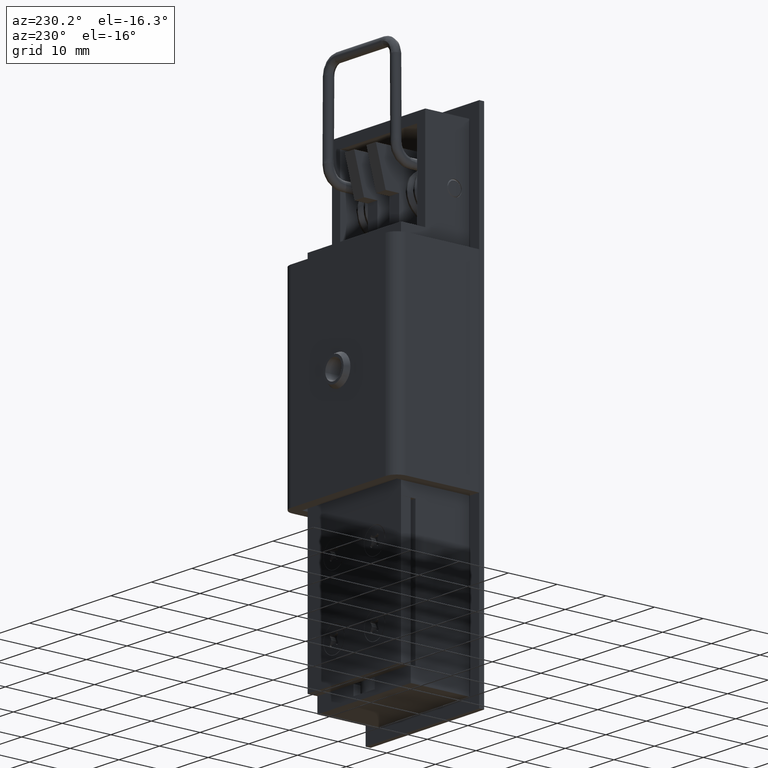
[diagram: clean part render]
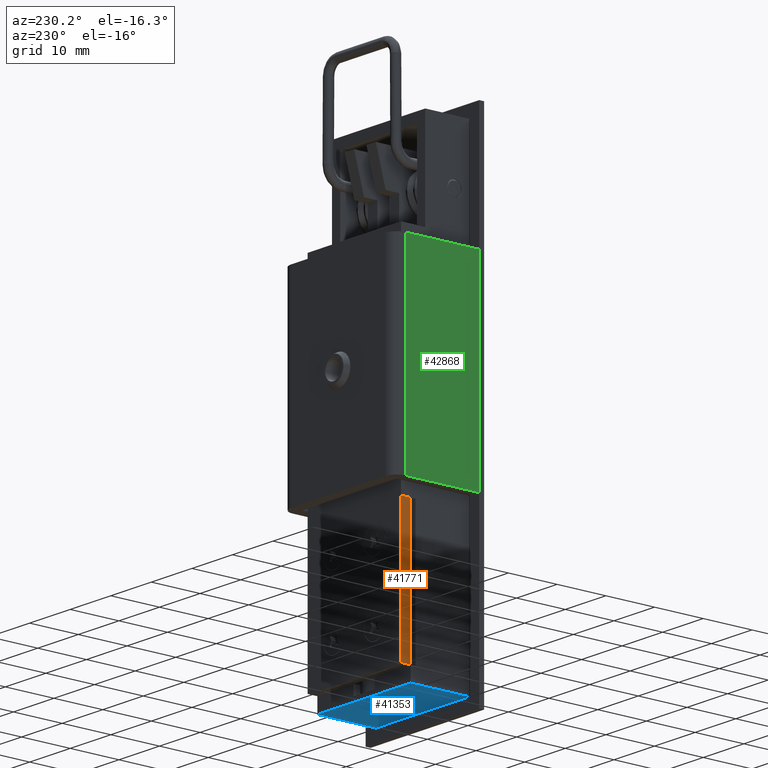
[diagram: same view with three faces highlighted in distinct colors, each labeled with its STEP entity id]
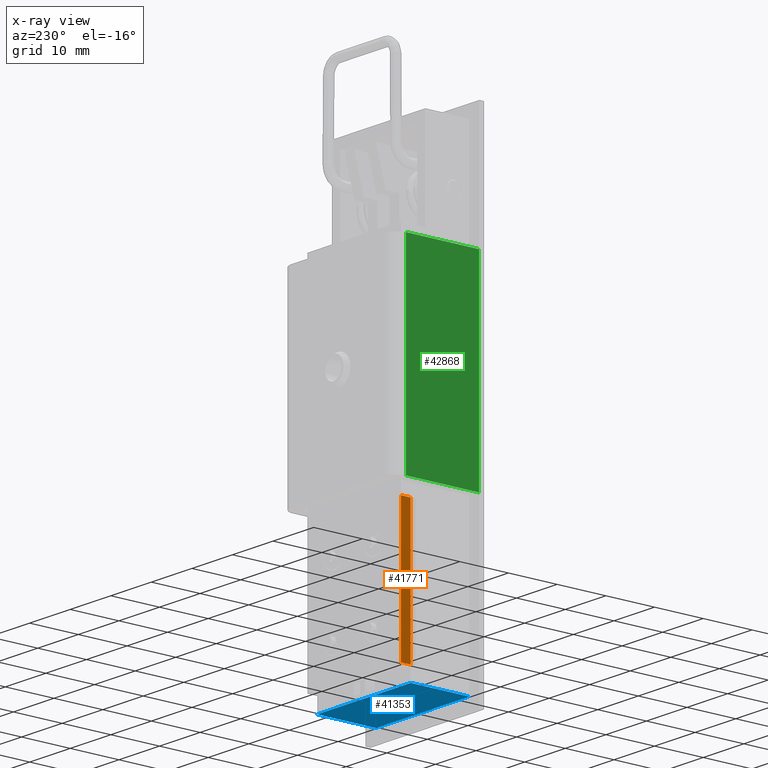
[diagram: x-ray of the same camera — body ghosted, the three highlighted faces saturated]
A machine part, auxiliary view with three faces highlighted in distinct colors.
The next image is the same camera in x-ray (body ghosted, the three faces saturated) — at least one of them is partly hidden behind the body in this view.
Their STEP definitions:

[orange] entity #41771 — the highlighted face is a freeform B-spline surface patch.
#40260=CARTESIAN_POINT('',(15.0,11.500000000000000,32.990000000000002));
#40261=VERTEX_POINT('',#40260);
#40267=CARTESIAN_POINT('',(13.010000000000000,11.500000000000000,32.990000000000002));
#40268=VERTEX_POINT('',#40267);
#40269=CARTESIAN_POINT('',(13.010000000000000,11.500000000000000,32.990000000000002));
#40270=CARTESIAN_POINT('',(15.0,11.500000000000000,32.990000000000002));
#40271=QUASI_UNIFORM_CURVE('',1,(#40269,#40270),.UNSPECIFIED.,.F.,.U.);
#40272=EDGE_CURVE('',#40268,#40261,#40271,.T.);
#40366=CARTESIAN_POINT('',(13.010000000000000,11.500000000000000,5.500000000000000));
#40367=VERTEX_POINT('',#40366);
#40368=CARTESIAN_POINT('',(13.010000000000000,11.500000000000000,5.500000000000000));
#40369=CARTESIAN_POINT('',(13.010000000000000,11.500000000000000,32.990000000000002));
#40370=QUASI_UNIFORM_CURVE('',1,(#40368,#40369),.UNSPECIFIED.,.F.,.U.);
#40371=EDGE_CURVE('',#40367,#40268,#40370,.T.);
#41750=CARTESIAN_POINT('',(12.910599746706060,11.500000000000000,4.126874455067362));
#41751=CARTESIAN_POINT('',(15.099400537965730,11.500000000000000,4.126874455067362));
#41752=CARTESIAN_POINT('',(12.910599746706060,11.500000000000000,34.363128248509923));
#41753=CARTESIAN_POINT('',(15.099400537965730,11.500000000000000,34.363128248509923));
#41754=B_SPLINE_SURFACE_WITH_KNOTS('',1,1,((#41750,#41752),(#41751,#41753)),.UNSPECIFIED.,.F.,.F.,.U.,(2,2),(2,2),(0.0,2.188800791259668),(0.0,30.236253793442561),.UNSPECIFIED.);
#41755=ORIENTED_EDGE('',*,*,#40272,.T.);
#41756=CARTESIAN_POINT('',(15.0,11.500000000000000,5.500000000000000));
#41757=VERTEX_POINT('',#41756);
#41758=CARTESIAN_POINT('',(15.0,11.500000000000000,32.990000000000002));
#41759=CARTESIAN_POINT('',(15.0,11.500000000000000,5.500000000000000));
#41760=QUASI_UNIFORM_CURVE('',1,(#41758,#41759),.UNSPECIFIED.,.F.,.U.);
#41761=EDGE_CURVE('',#40261,#41757,#41760,.T.);
#41762=ORIENTED_EDGE('',*,*,#41761,.T.);
#41763=CARTESIAN_POINT('',(13.010000000000000,11.500000000000000,5.500000000000000));
#41764=CARTESIAN_POINT('',(15.0,11.500000000000000,5.500000000000000));
#41765=QUASI_UNIFORM_CURVE('',1,(#41763,#41764),.UNSPECIFIED.,.F.,.U.);
#41766=EDGE_CURVE('',#40367,#41757,#41765,.T.);
#41767=ORIENTED_EDGE('',*,*,#41766,.F.);
#41768=ORIENTED_EDGE('',*,*,#40371,.T.);
#41769=EDGE_LOOP('',(#41755,#41762,#41767,#41768));
#41770=FACE_OUTER_BOUND('',#41769,.T.);
#41771=ADVANCED_FACE('',(#41770),#41754,.F.);

[blue] entity #41353 — the highlighted face is a freeform B-spline surface patch.
#41318=CARTESIAN_POINT('',(0.400600023258329,-12.648849955421539,2.500000000000000));
#41319=CARTESIAN_POINT('',(13.599400298606760,-12.648849955421539,2.500000000000000));
#41320=CARTESIAN_POINT('',(0.400600023258329,12.648850572329611,2.500000000000000));
#41321=CARTESIAN_POINT('',(13.599400298606760,12.648850572329611,2.500000000000000));
#41322=B_SPLINE_SURFACE_WITH_KNOTS('',1,1,((#41318,#41320),(#41319,#41321)),.UNSPECIFIED.,.F.,.F.,.U.,(2,2),(2,2),(0.0,13.198800275348431),(0.0,25.297700527751161),.UNSPECIFIED.);
#41323=CARTESIAN_POINT('',(13.0,-11.500000000000000,2.500000000000000));
#41324=VERTEX_POINT('',#41323);
#41325=CARTESIAN_POINT('',(1.0,-11.500000000000000,2.500000000000000));
#41326=VERTEX_POINT('',#41325);
#41327=CARTESIAN_POINT('',(13.0,-11.500000000000000,2.500000000000000));
#41328=CARTESIAN_POINT('',(1.0,-11.500000000000000,2.500000000000000));
#41329=QUASI_UNIFORM_CURVE('',1,(#41327,#41328),.UNSPECIFIED.,.F.,.U.);
#41330=EDGE_CURVE('',#41324,#41326,#41329,.T.);
#41331=ORIENTED_EDGE('',*,*,#41330,.T.);
#41332=CARTESIAN_POINT('',(1.0,11.500000000000000,2.500000000000000));
#41333=VERTEX_POINT('',#41332);
#41334=CARTESIAN_POINT('',(1.0,11.500000000000000,2.500000000000000));
#41335=CARTESIAN_POINT('',(1.0,-11.500000000000000,2.500000000000000));
#41336=QUASI_UNIFORM_CURVE('',1,(#41334,#41335),.UNSPECIFIED.,.F.,.U.);
#41337=EDGE_CURVE('',#41333,#41326,#41336,.T.);
#41338=ORIENTED_EDGE('',*,*,#41337,.F.);
#41339=CARTESIAN_POINT('',(13.0,11.500000000000000,2.500000000000000));
#41340=VERTEX_POINT('',#41339);
#41341=CARTESIAN_POINT('',(13.0,11.500000000000000,2.500000000000000));
#41342=CARTESIAN_POINT('',(1.0,11.500000000000000,2.500000000000000));
#41343=QUASI_UNIFORM_CURVE('',1,(#41341,#41342),.UNSPECIFIED.,.F.,.U.);
#41344=EDGE_CURVE('',#41340,#41333,#41343,.T.);
#41345=ORIENTED_EDGE('',*,*,#41344,.F.);
#41346=CARTESIAN_POINT('',(13.0,11.500000000000000,2.500000000000000));
#41347=CARTESIAN_POINT('',(13.0,-11.500000000000000,2.500000000000000));
#41348=QUASI_UNIFORM_CURVE('',1,(#41346,#41347),.UNSPECIFIED.,.F.,.U.);
#41349=EDGE_CURVE('',#41340,#41324,#41348,.T.);
#41350=ORIENTED_EDGE('',*,*,#41349,.T.);
#41351=EDGE_LOOP('',(#41331,#41338,#41345,#41350));
#41352=FACE_OUTER_BOUND('',#41351,.T.);
#41353=ADVANCED_FACE('',(#41352),#41322,.F.);

[green] entity #42868 — the highlighted face is a freeform B-spline surface patch.
#42496=CARTESIAN_POINT('',(1.0,13.949999999999999,75.500010000000003));
#42497=VERTEX_POINT('',#42496);
#42498=CARTESIAN_POINT('',(16.0,13.949999999999999,75.500010000000003));
#42499=VERTEX_POINT('',#42498);
#42500=CARTESIAN_POINT('',(1.0,13.949999999999999,75.500010000000003));
#42501=CARTESIAN_POINT('',(16.0,13.949999999999999,75.500010000000003));
#42502=QUASI_UNIFORM_CURVE('',1,(#42500,#42501),.UNSPECIFIED.,.F.,.U.);
#42503=EDGE_CURVE('',#42497,#42499,#42502,.T.);
#42590=CARTESIAN_POINT('',(1.0,13.949999999999999,35.500000000000000));
#42591=VERTEX_POINT('',#42590);
#42592=CARTESIAN_POINT('',(16.0,13.949999999999999,35.500000000000000));
#42593=VERTEX_POINT('',#42592);
#42594=CARTESIAN_POINT('',(1.0,13.949999999999999,35.500000000000000));
#42595=CARTESIAN_POINT('',(16.0,13.949999999999999,35.500000000000000));
#42596=QUASI_UNIFORM_CURVE('',1,(#42594,#42595),.UNSPECIFIED.,.F.,.U.);
#42597=EDGE_CURVE('',#42591,#42593,#42596,.T.);
#42685=CARTESIAN_POINT('',(1.0,13.949999999999999,35.500000000000000));
#42686=CARTESIAN_POINT('',(1.0,13.949999999999999,75.500010000000003));
#42687=QUASI_UNIFORM_CURVE('',1,(#42685,#42686),.UNSPECIFIED.,.F.,.U.);
#42688=EDGE_CURVE('',#42591,#42497,#42687,.T.);
#42849=CARTESIAN_POINT('',(16.0,13.949999999999999,35.500000000000000));
#42850=CARTESIAN_POINT('',(16.0,13.949999999999999,75.500010000000003));
#42851=QUASI_UNIFORM_CURVE('',1,(#42849,#42850),.UNSPECIFIED.,.F.,.U.);
#42852=EDGE_CURVE('',#42593,#42499,#42851,.T.);
#42857=CARTESIAN_POINT('',(0.250750029072910,13.949999999999999,77.498008169023365));
#42858=CARTESIAN_POINT('',(0.250750029072910,13.949999999999999,33.501998612325011));
#42859=CARTESIAN_POINT('',(16.749250373258441,13.949999999999999,77.498008169023365));
#42860=CARTESIAN_POINT('',(16.749250373258441,13.949999999999999,33.501998612325011));
#42861=B_SPLINE_SURFACE_WITH_KNOTS('',1,1,((#42857,#42859),(#42858,#42860)),.UNSPECIFIED.,.F.,.F.,.U.,(2,2),(2,2),(0.0,43.996009556698347),(0.0,16.498500344185530),.UNSPECIFIED.);
#42862=ORIENTED_EDGE('',*,*,#42503,.T.);
#42863=ORIENTED_EDGE('',*,*,#42852,.F.);
#42864=ORIENTED_EDGE('',*,*,#42597,.F.);
#42865=ORIENTED_EDGE('',*,*,#42688,.T.);
#42866=EDGE_LOOP('',(#42862,#42863,#42864,#42865));
#42867=FACE_OUTER_BOUND('',#42866,.T.);
#42868=ADVANCED_FACE('',(#42867),#42861,.F.);